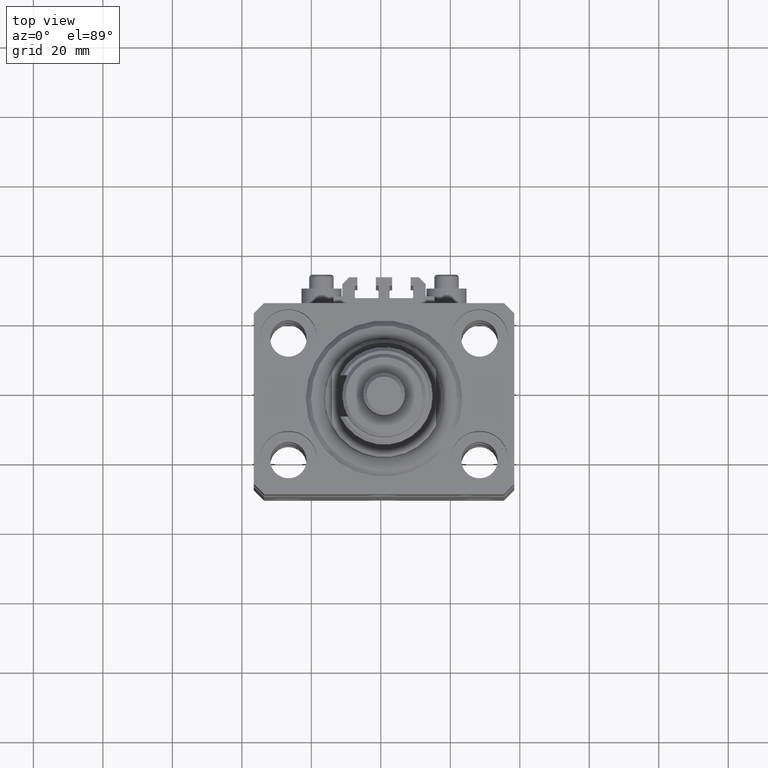
[diagram: clean part render]
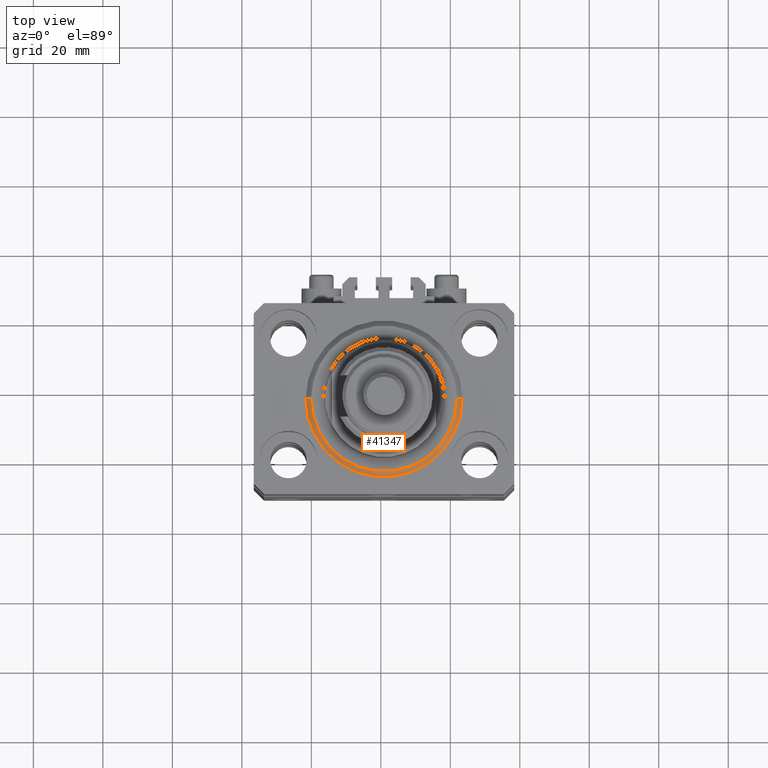
[diagram: same view with one face highlighted and labeled with its STEP entity id]
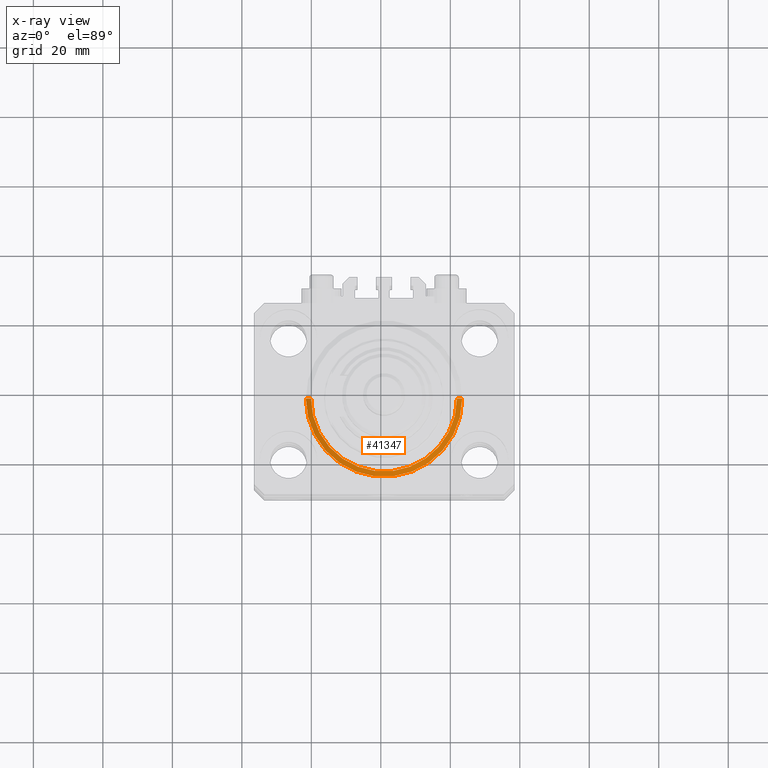
[diagram: x-ray of the same camera — body ghosted, the highlighted face saturated]
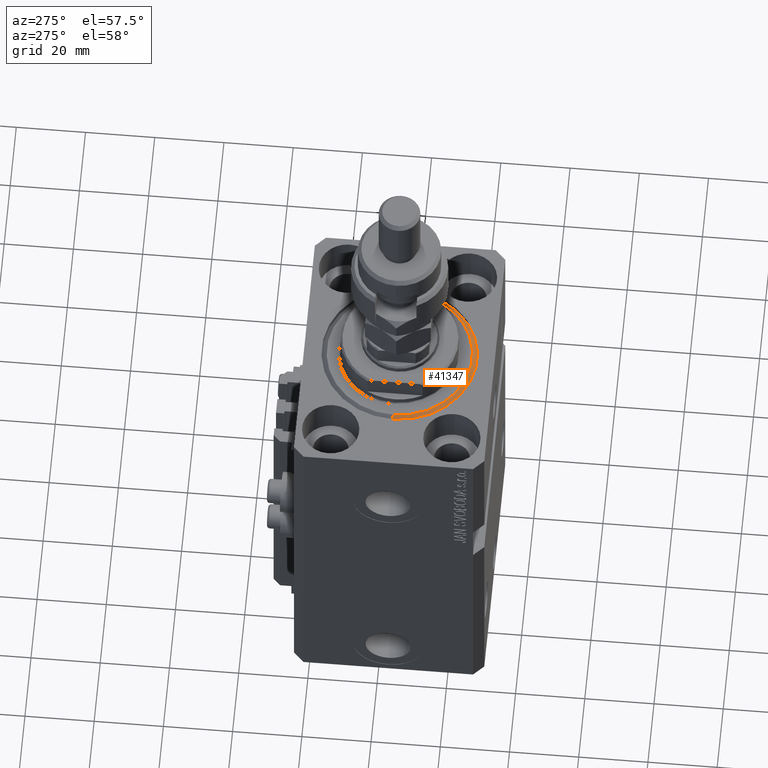
[diagram: same view with one face highlighted and labeled with its STEP entity id]
A machine part, top view. The second image highlights one B-rep face of the part: STEP entity #41347.
The next image is the same camera in x-ray: the body ghosted, the highlighted face saturated — about 0% of this face is hidden behind the body in this view.
A second angle (auxiliary view) of the same face is appended — the face is thin or edge-on in the first view.
In plain terms, the highlighted conical surface has half-angle 45 deg.
Its self-contained STEP definition (entity closure, byte-faithful):
#1444 = EDGE_CURVE ( 'NONE', #27621, #17172, #18280, .T. ) ;
#2367 = EDGE_CURVE ( 'NONE', #2452, #41734, #49811, .T. ) ;
#2452 = VERTEX_POINT ( 'NONE', #26212 ) ;
#4650 = DIRECTION ( 'NONE',  ( 1.000000000000000000, 0.000000000000000000, 0.000000000000000000 ) ) ;
#5831 = DIRECTION ( 'NONE',  ( 1.000000000000000000, 0.000000000000000000, 0.000000000000000000 ) ) ;
#6574 = AXIS2_PLACEMENT_3D ( 'NONE', #28662, #9404, #5831 ) ;
#6866 = DIRECTION ( 'NONE',  ( 0.7071067811865500152, 0.000000000000000000, 0.7071067811865451302 ) ) ;
#7198 = CARTESIAN_POINT ( 'NONE',  ( -22.50000000000000355, 2.755455298081545172E-15, 1.500000000000001332 ) ) ;
#8931 = AXIS2_PLACEMENT_3D ( 'NONE', #13764, #44183, #36822 ) ;
#9404 = DIRECTION ( 'NONE',  ( -0.000000000000000000, -0.000000000000000000, -1.000000000000000000 ) ) ;
#10353 = ORIENTED_EDGE ( 'NONE', *, *, #2367, .F. ) ;
#10858 = EDGE_CURVE ( 'NONE', #27621, #2452, #16323, .T. ) ;
#13764 = CARTESIAN_POINT ( 'NONE',  ( 0.000000000000000000, 0.000000000000000000, 1.500000000000001332 ) ) ;
#13888 = CARTESIAN_POINT ( 'NONE',  ( 22.50000000000000355, 2.755455298081545172E-15, 1.500000000000001332 ) ) ;
#16323 = CIRCLE ( 'NONE', #6574, 20.99999999999998934 ) ;
#16835 = DIRECTION ( 'NONE',  ( -0.000000000000000000, -0.000000000000000000, 1.000000000000000000 ) ) ;
#17172 = VERTEX_POINT ( 'NONE', #13888 ) ;
#17596 = ORIENTED_EDGE ( 'NONE', *, *, #1444, .T. ) ;
#18152 = EDGE_CURVE ( 'NONE', #41734, #17172, #20504, .T. ) ;
#18280 = LINE ( 'NONE', #37560, #22468 ) ;
#20504 = CIRCLE ( 'NONE', #48875, 22.50000000000000355 ) ;
#21354 = FACE_OUTER_BOUND ( 'NONE', #46354, .T. ) ;
#22468 = VECTOR ( 'NONE', #6866, 1000.000000000000114 ) ;
#24684 = CARTESIAN_POINT ( 'NONE',  ( 0.000000000000000000, 0.000000000000000000, 1.500000000000001332 ) ) ;
#25686 = VECTOR ( 'NONE', #33335, 1000.000000000000114 ) ;
#26212 = CARTESIAN_POINT ( 'NONE',  ( -20.99999999999998934, 2.663606788145492628E-15, 0.000000000000000000 ) ) ;
#27621 = VERTEX_POINT ( 'NONE', #33369 ) ;
#27757 = ORIENTED_EDGE ( 'NONE', *, *, #18152, .F. ) ;
#28662 = CARTESIAN_POINT ( 'NONE',  ( 0.000000000000000000, 0.000000000000000000, 0.000000000000000000 ) ) ;
#33335 = DIRECTION ( 'NONE',  ( -0.7071067811865500152, 8.659560562354963673E-17, 0.7071067811865451302 ) ) ;
#33369 = CARTESIAN_POINT ( 'NONE',  ( 20.99999999999998934, 0.000000000000000000, 0.000000000000000000 ) ) ;
#34945 = CARTESIAN_POINT ( 'NONE',  ( -22.50000000000000355, 0.000000000000000000, 1.500000000000001332 ) ) ;
#36822 = DIRECTION ( 'NONE',  ( 1.000000000000000000, 0.000000000000000000, 0.000000000000000000 ) ) ;
#37560 = CARTESIAN_POINT ( 'NONE',  ( 22.50000000000000355, 0.000000000000000000, 1.500000000000001332 ) ) ;
#41317 = CONICAL_SURFACE ( 'NONE', #8931, 22.50000000000000355, 0.7853981633974517207 ) ;
#41347 = ADVANCED_FACE ( 'NONE', ( #21354 ), #41317, .T. ) ;
#41734 = VERTEX_POINT ( 'NONE', #34945 ) ;
#44183 = DIRECTION ( 'NONE',  ( -0.000000000000000000, -0.000000000000000000, 1.000000000000000000 ) ) ;
#45894 = ORIENTED_EDGE ( 'NONE', *, *, #10858, .F. ) ;
#46354 = EDGE_LOOP ( 'NONE', ( #10353, #45894, #17596, #27757 ) ) ;
#48875 = AXIS2_PLACEMENT_3D ( 'NONE', #24684, #16835, #4650 ) ;
#49811 = LINE ( 'NONE', #7198, #25686 ) ;